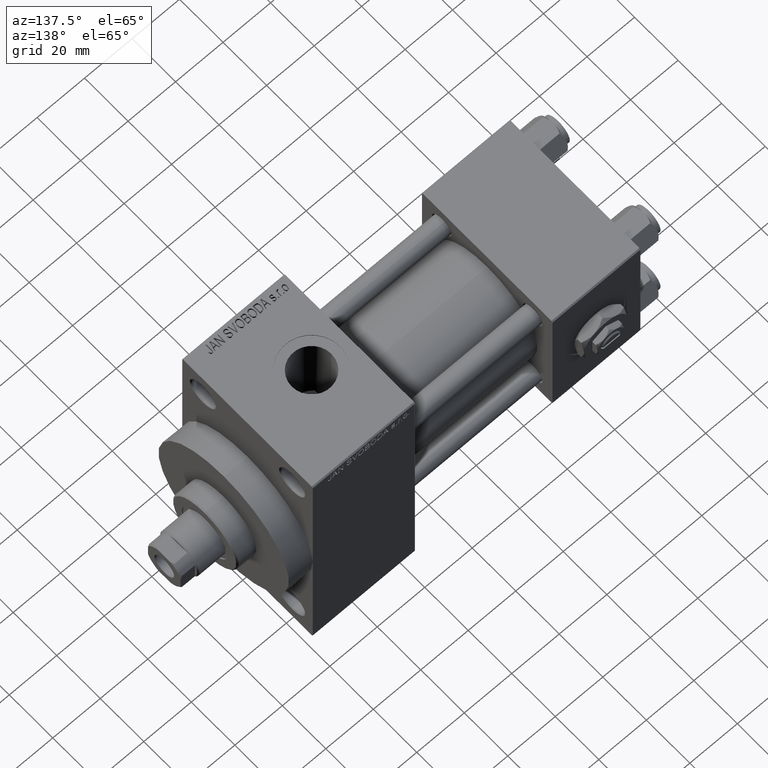
[diagram: clean part render]
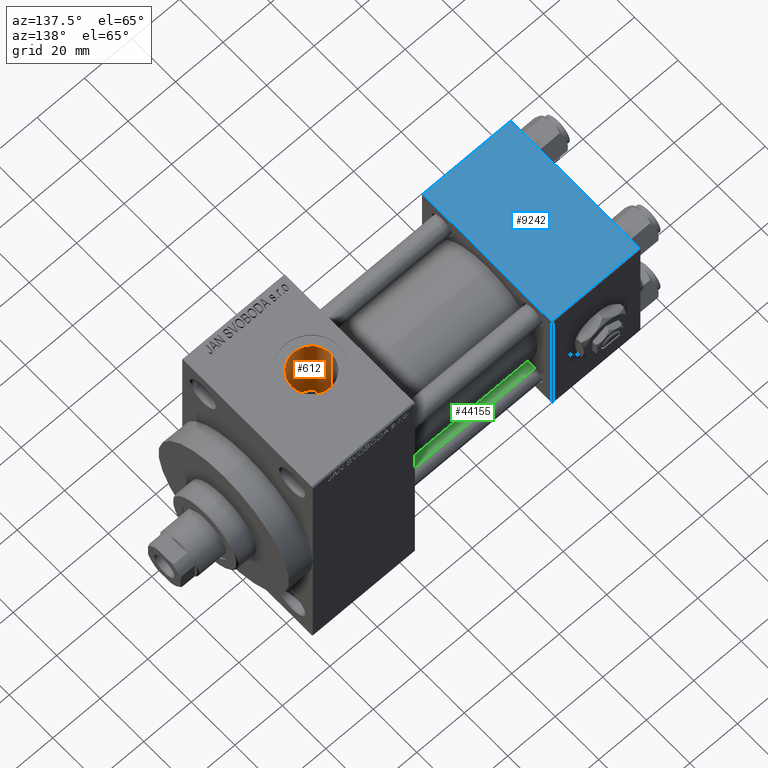
[diagram: same view with three faces highlighted in distinct colors, each labeled with its STEP entity id]
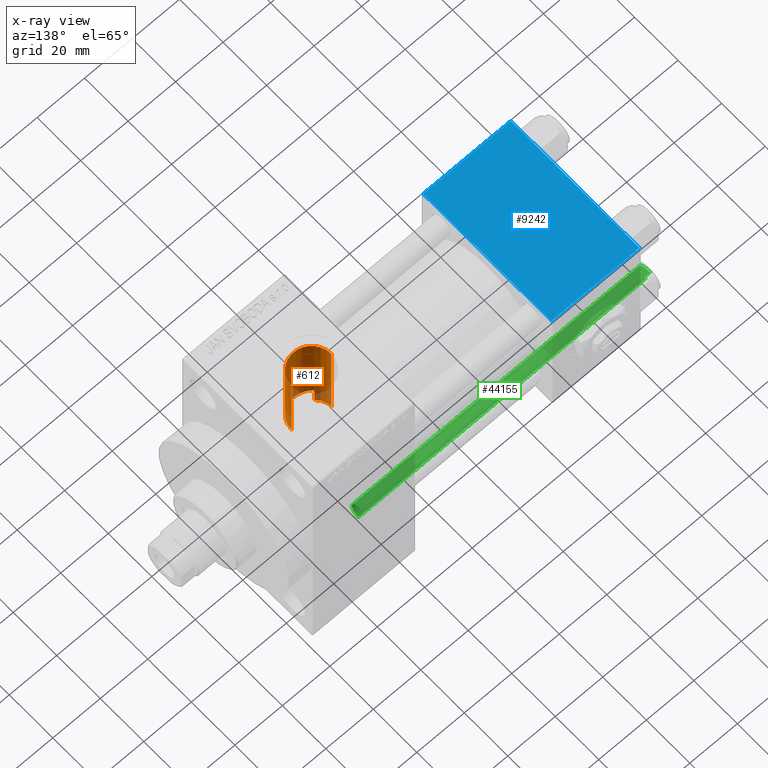
[diagram: x-ray of the same camera — body ghosted, the three highlighted faces saturated]
A machine part, auxiliary view with three faces highlighted in distinct colors.
The next image is the same camera in x-ray (body ghosted, the three faces saturated) — at least one of them is partly hidden behind the body in this view.
Their STEP definitions:

[orange] entity #612 — the highlighted cylindrical surface (edge-blend (fillet) strip) has radius 8.33 mm, axis along (0, 0, -1).
#65 = VECTOR ( 'NONE', #45533, 1000.000000000000000 ) ;
#612 = ADVANCED_FACE ( 'NONE', ( #37263 ), #41476, .F. ) ;
#951 = VERTEX_POINT ( 'NONE', #45856 ) ;
#1090 = CARTESIAN_POINT ( 'NONE',  ( 105.9550632640747949, -6.641689111475751695, 21.49922460944221569 ) ) ;
#1281 = CARTESIAN_POINT ( 'NONE',  ( 102.9120937043486492, -2.009728921522578204, 15.37113873265544761 ) ) ;
#1568 = CARTESIAN_POINT ( 'NONE',  ( 116.7709310325000160, -6.021442665975470732, 21.68155238348414926 ) ) ;
#1838 = CARTESIAN_POINT ( 'NONE',  ( 119.3300000000000125, 7.322959413072145713E-15, 77.29999999999999716 ) ) ;
#2312 = EDGE_CURVE ( 'NONE', #42901, #20030, #19283, .T. ) ;
#3560 = VECTOR ( 'NONE', #43200, 1000.000000000000000 ) ;
#4819 = CARTESIAN_POINT ( 'NONE',  ( 108.5613052431537540, -7.976241308370980221, 21.03905286955202314 ) ) ;
#5735 = DIRECTION ( 'NONE',  ( 0.000000000000000000, 0.000000000000000000, -1.000000000000000000 ) ) ;
#6911 = LINE ( 'NONE', #7897, #65 ) ;
#7897 = CARTESIAN_POINT ( 'NONE',  ( 104.7400000000000233, -5.495570943951159748, 77.29999999999999716 ) ) ;
#9027 = AXIS2_PLACEMENT_3D ( 'NONE', #21068, #10167, #18082 ) ;
#9234 = CARTESIAN_POINT ( 'NONE',  ( 114.7487363894115333, -7.487015359358448308, 21.22021487626641090 ) ) ;
#9475 = CARTESIAN_POINT ( 'NONE',  ( 118.6639140372367791, -3.290714903397350177, 22.26132373405805254 ) ) ;
#10167 = DIRECTION ( 'NONE',  ( -0.000000000000000000, -0.000000000000000000, -1.000000000000000000 ) ) ;
#10302 = VERTEX_POINT ( 'NONE', #29507 ) ;
#10363 = B_SPLINE_CURVE_WITH_KNOTS ( 'NONE', 3,
 ( #19866, #31980, #31021, #43133, #12198, #47072, #34981, #35215, #20580, #1281, #38674, #16375, #13154, #23575 ),
 .UNSPECIFIED., .F., .F.,
 ( 4, 2, 2, 2, 2, 2, 4 ),
 ( 0.02049932184141860583, 0.02125918471438761892, 0.02201904758735663548, 0.02353877333329466165, 0.02429863620626367127, 0.02505849907923268435, 0.02657822482517071053 ),
 .UNSPECIFIED. ) ;
#10758 = DIRECTION ( 'NONE',  ( -1.000000000000000000, 0.000000000000000000, 0.000000000000000000 ) ) ;
#12198 = CARTESIAN_POINT ( 'NONE',  ( 103.9948433974193023, -4.514179031432338007, 14.82972530592077298 ) ) ;
#12248 = CARTESIAN_POINT ( 'NONE',  ( 119.0725935047802437, -2.097577831626820100, 22.40566635581345167 ) ) ;
#12312 = CARTESIAN_POINT ( 'NONE',  ( 119.3300000000000125, 2.755455287773006291E-15, 22.50000000000000355 ) ) ;
#12478 = CARTESIAN_POINT ( 'NONE',  ( 118.2951098973458244, -4.042988316980855146, 22.13706359110742383 ) ) ;
#12967 = CARTESIAN_POINT ( 'NONE',  ( 107.0116854358692962, -7.325101535721546320, 21.27547271216653968 ) ) ;
#12998 = CIRCLE ( 'NONE', #9027, 8.330000000000003624 ) ;
#13154 = CARTESIAN_POINT ( 'NONE',  ( 102.6700000000000017, -0.5084530117862672283, 15.49999999999999822 ) ) ;
#13201 = CARTESIAN_POINT ( 'NONE',  ( 119.3300000000000409, -0.4228661663087284195, 22.50000000000001421 ) ) ;
#14942 = VECTOR ( 'NONE', #5735, 1000.000000000000000 ) ;
#15955 = CARTESIAN_POINT ( 'NONE',  ( 119.3300000000000125, 2.755455287773006291E-15, 22.50000000000000355 ) ) ;
#16375 = CARTESIAN_POINT ( 'NONE',  ( 102.7161642970316251, -1.011996084777072147, 15.47504315940083508 ) ) ;
#16423 = CARTESIAN_POINT ( 'NONE',  ( 116.4597915280917988, -6.305104980880364529, 21.60018777995134798 ) ) ;
#16533 = EDGE_CURVE ( 'NONE', #951, #10302, #35940, .T. ) ;
#17636 = CARTESIAN_POINT ( 'NONE',  ( 119.3300000000000125, 7.322959413072145713E-15, 54.29999999999999716 ) ) ;
#18082 = DIRECTION ( 'NONE',  ( 1.000000000000000000, 0.000000000000000000, 0.000000000000000000 ) ) ;
#18446 = CARTESIAN_POINT ( 'NONE',  ( 104.7400000000000233, -5.495570943951159748, 21.81854028114621258 ) ) ;
#19283 = B_SPLINE_CURVE_WITH_KNOTS ( 'NONE', 3,
 ( #15955, #13201, #31075, #28055, #12248, #24104, #9475, #12478, #46169, #32025, #28285, #1568, #16423, #27334, #9234, #46644, #27821, #38731, #42945, #20378, #39219, #31310, #31787, #4819, #46881, #19915, #12967, #35030, #1090, #43179, #24337, #28783 ),
 .UNSPECIFIED., .F., .F.,
 ( 4, 2, 2, 2, 2, 2, 2, 2, 2, 2, 2, 2, 2, 2, 2, 4 ),
 ( 0.02026158208243475367, 0.02152696880141127117, 0.02279235552038778867, 0.02405774223936430270, 0.02532312895834082020, 0.02658851567731733770, 0.02785390239629385173, 0.03038467583424691448, 0.03291544927219997724, 0.03354814263168821864, 0.03418083599117646698, 0.03544622271015295673, 0.03671160942912944647, 0.03797699614810593621, 0.03924238286708242596, 0.04050776958605891570 ),
 .UNSPECIFIED. ) ;
#19866 = CARTESIAN_POINT ( 'NONE',  ( 104.7400000000000233, -5.495570943951159748, 14.49305695841977126 ) ) ;
#19915 = CARTESIAN_POINT ( 'NONE',  ( 107.3830852825355180, -7.515492575748676352, 21.20842510955139204 ) ) ;
#20030 = VERTEX_POINT ( 'NONE', #18446 ) ;
#20378 = CARTESIAN_POINT ( 'NONE',  ( 110.6388607599010214, -8.324890737869420576, 20.90325837862613412 ) ) ;
#20580 = CARTESIAN_POINT ( 'NONE',  ( 103.0493583877047001, -2.498106590616146150, 15.29935880154671857 ) ) ;
#20964 = ORIENTED_EDGE ( 'NONE', *, *, #2312, .T. ) ;
#21068 = CARTESIAN_POINT ( 'NONE',  ( 111.0000000000000000, 6.302828629382400162E-15, 54.29999999999999716 ) ) ;
#21269 = ORIENTED_EDGE ( 'NONE', *, *, #37911, .T. ) ;
#22639 = DIRECTION ( 'NONE',  ( 0.000000000000000000, 0.000000000000000000, -1.000000000000000000 ) ) ;
#22921 = ORIENTED_EDGE ( 'NONE', *, *, #16533, .F. ) ;
#23575 = CARTESIAN_POINT ( 'NONE',  ( 102.6700000000000017, 1.898202536900960226E-15, 15.50000000000000000 ) ) ;
#24104 = CARTESIAN_POINT ( 'NONE',  ( 118.8195974207912968, -2.901808889280238279, 22.31576175661178141 ) ) ;
#24337 = CARTESIAN_POINT ( 'NONE',  ( 105.0173696454154140, -5.811522461638596759, 21.73895961452385350 ) ) ;
#25144 = EDGE_CURVE ( 'NONE', #29076, #20030, #6911, .T. ) ;
#26179 = CARTESIAN_POINT ( 'NONE',  ( 104.7400000000000233, -5.495570943951159748, 14.49305695841977126 ) ) ;
#27334 = CARTESIAN_POINT ( 'NONE',  ( 115.4717217021022293, -7.077548616542896909, 21.36464718587223643 ) ) ;
#27821 = CARTESIAN_POINT ( 'NONE',  ( 112.3403738839046895, -8.265299052519043954, 20.92696222447262500 ) ) ;
#28055 = CARTESIAN_POINT ( 'NONE',  ( 119.1699291769579077, -1.679278209817679945, 22.44115179447787156 ) ) ;
#28077 = LINE ( 'NONE', #1838, #3560 ) ;
#28172 = VERTEX_POINT ( 'NONE', #17636 ) ;
#28285 = CARTESIAN_POINT ( 'NONE',  ( 117.3413009043436830, -5.417501232309193782, 21.84028767977485330 ) ) ;
#28491 = CARTESIAN_POINT ( 'NONE',  ( 102.6700000000000017, 6.302828629382400162E-15, 77.29999999999999716 ) ) ;
#28783 = CARTESIAN_POINT ( 'NONE',  ( 104.7400000000000233, -5.495570943951159748, 21.81854028114621258 ) ) ;
#29076 = VERTEX_POINT ( 'NONE', #26179 ) ;
#29507 = CARTESIAN_POINT ( 'NONE',  ( 102.6700000000000017, 1.898202536900960226E-15, 15.50000000000000000 ) ) ;
#29556 = ORIENTED_EDGE ( 'NONE', *, *, #29625, .T. ) ;
#29625 = EDGE_CURVE ( 'NONE', #29076, #10302, #10363, .T. ) ;
#31021 = CARTESIAN_POINT ( 'NONE',  ( 104.4250998660804157, -5.120614576075413815, 14.63125231332695009 ) ) ;
#31075 = CARTESIAN_POINT ( 'NONE',  ( 119.2979863424998257, -0.8432915997222955040, 22.48808859033163188 ) ) ;
#31310 = CARTESIAN_POINT ( 'NONE',  ( 109.7966742200955963, -8.253438808842114227, 20.93161653585327286 ) ) ;
#31787 = CARTESIAN_POINT ( 'NONE',  ( 109.3814412075936531, -8.182171164303330357, 20.95982457214782357 ) ) ;
#31980 = CARTESIAN_POINT ( 'NONE',  ( 104.5787930821608853, -5.311940286469821082, 14.56268721714078396 ) ) ;
#32025 = CARTESIAN_POINT ( 'NONE',  ( 117.6031555897930758, -5.095277354536523973, 21.91828998158686304 ) ) ;
#33831 = ORIENTED_EDGE ( 'NONE', *, *, #36961, .F. ) ;
#34287 = CARTESIAN_POINT ( 'NONE',  ( 111.0000000000000000, 6.302828629382400162E-15, 77.29999999999999716 ) ) ;
#34981 = CARTESIAN_POINT ( 'NONE',  ( 103.3948893894385748, -3.435066750549618853, 15.12202026186481341 ) ) ;
#35030 = CARTESIAN_POINT ( 'NONE',  ( 106.2981393575764457, -6.888851288155064978, 21.42070446004186479 ) ) ;
#35215 = CARTESIAN_POINT ( 'NONE',  ( 103.1283513953167699, -2.736452263294506526, 15.25837881643903948 ) ) ;
#35324 = ORIENTED_EDGE ( 'NONE', *, *, #25144, .F. ) ;
#35940 = LINE ( 'NONE', #28491, #14942 ) ;
#36961 = EDGE_CURVE ( 'NONE', #28172, #951, #12998, .T. ) ;
#37263 = FACE_OUTER_BOUND ( 'NONE', #45304, .T. ) ;
#37911 = EDGE_CURVE ( 'NONE', #28172, #42901, #28077, .T. ) ;
#38674 = CARTESIAN_POINT ( 'NONE',  ( 102.8541189623221044, -1.760060972621111608, 15.40178429883650502 ) ) ;
#38731 = CARTESIAN_POINT ( 'NONE',  ( 111.2794540716097629, -8.328024065339553417, 20.90201419577500985 ) ) ;
#39219 = CARTESIAN_POINT ( 'NONE',  ( 110.4273342078095936, -8.312974207010734418, 20.90801079915067362 ) ) ;
#41476 = CYLINDRICAL_SURFACE ( 'NONE', #44039, 8.330000000000003624 ) ;
#42901 = VERTEX_POINT ( 'NONE', #12312 ) ;
#42945 = CARTESIAN_POINT ( 'NONE',  ( 111.0645977083230065, -8.332469890991669459, 20.90023832775082724 ) ) ;
#43133 = CARTESIAN_POINT ( 'NONE',  ( 104.1330257393911722, -4.721723193058591228, 14.76480843021959899 ) ) ;
#43179 = CARTESIAN_POINT ( 'NONE',  ( 105.3158746668531620, -6.103616970294096333, 21.65812902678066720 ) ) ;
#43200 = DIRECTION ( 'NONE',  ( 0.000000000000000000, 0.000000000000000000, -1.000000000000000000 ) ) ;
#44039 = AXIS2_PLACEMENT_3D ( 'NONE', #34287, #22639, #10758 ) ;
#45304 = EDGE_LOOP ( 'NONE', ( #33831, #21269, #20964, #35324, #29556, #22921 ) ) ;
#45533 = DIRECTION ( 'NONE',  ( -0.000000000000000000, -0.000000000000000000, 1.000000000000000000 ) ) ;
#45856 = CARTESIAN_POINT ( 'NONE',  ( 102.6700000000000017, 6.302828629382400162E-15, 54.29999999999999716 ) ) ;
#46169 = CARTESIAN_POINT ( 'NONE',  ( 118.0799258618782517, -4.408873422199381054, 22.06660649451128364 ) ) ;
#46644 = CARTESIAN_POINT ( 'NONE',  ( 113.1626272159215887, -8.088971939222112439, 20.99812971082578272 ) ) ;
#46881 = CARTESIAN_POINT ( 'NONE',  ( 108.1560306839754588, -7.840697625789145420, 21.09036237300174932 ) ) ;
#47072 = CARTESIAN_POINT ( 'NONE',  ( 103.6117315744683509, -3.879035329860508252, 15.01323898488448272 ) ) ;

[blue] entity #9242 — the highlighted planar face has unit normal (0, 0, -1).
#421 = CARTESIAN_POINT ( 'NONE',  ( 37.00000000000000000, -29.49999999999998579, 29.99999999999999289 ) ) ;
#547 = CARTESIAN_POINT ( 'NONE',  ( 37.00000000000000000, -29.50000000000000000, 29.99999999999999289 ) ) ;
#1680 = LINE ( 'NONE', #16772, #31610 ) ;
#2492 = CARTESIAN_POINT ( 'NONE',  ( 37.00000000000000000, 29.49999999999999289, 30.00000000000000000 ) ) ;
#2797 = DIRECTION ( 'NONE',  ( 0.000000000000000000, 1.156482317317871725E-16, -1.000000000000000000 ) ) ;
#5486 = DIRECTION ( 'NONE',  ( -1.000000000000000000, 0.000000000000000000, 0.000000000000000000 ) ) ;
#6745 = ORIENTED_EDGE ( 'NONE', *, *, #16493, .T. ) ;
#9242 = ADVANCED_FACE ( 'NONE', ( #17151 ), #13450, .F. ) ;
#10020 = VERTEX_POINT ( 'NONE', #41212 ) ;
#12362 = VERTEX_POINT ( 'NONE', #2492 ) ;
#12436 = CARTESIAN_POINT ( 'NONE',  ( 0.000000000000000000, 29.49999999999999289, 30.00000000000000000 ) ) ;
#13450 = PLANE ( 'NONE',  #26817 ) ;
#15649 = DIRECTION ( 'NONE',  ( 1.000000000000000000, 0.000000000000000000, 0.000000000000000000 ) ) ;
#16493 = EDGE_CURVE ( 'NONE', #10020, #48468, #30275, .T. ) ;
#16653 = EDGE_CURVE ( 'NONE', #12362, #35043, #46359, .T. ) ;
#16772 = CARTESIAN_POINT ( 'NONE',  ( 0.000000000000000000, 29.99999999999999289, 30.00000000000000000 ) ) ;
#17151 = FACE_OUTER_BOUND ( 'NONE', #32473, .T. ) ;
#18715 = EDGE_CURVE ( 'NONE', #35043, #10020, #1680, .T. ) ;
#23945 = CARTESIAN_POINT ( 'NONE',  ( 37.00000000000000000, 29.99999999999999289, 30.00000000000000000 ) ) ;
#25569 = DIRECTION ( 'NONE',  ( 0.000000000000000000, 1.000000000000000000, 1.156482317317871725E-16 ) ) ;
#26013 = VECTOR ( 'NONE', #5486, 1000.000000000000000 ) ;
#26817 = AXIS2_PLACEMENT_3D ( 'NONE', #32263, #2797, #25569 ) ;
#30275 = LINE ( 'NONE', #547, #37077 ) ;
#31610 = VECTOR ( 'NONE', #32620, 1000.000000000000000 ) ;
#32263 = CARTESIAN_POINT ( 'NONE',  ( 37.00000000000000000, 29.99999999999999289, 30.00000000000000000 ) ) ;
#32473 = EDGE_LOOP ( 'NONE', ( #34148, #6745, #48780, #40062 ) ) ;
#32620 = DIRECTION ( 'NONE',  ( 0.000000000000000000, -1.000000000000000000, -1.156482317317871725E-16 ) ) ;
#32971 = CARTESIAN_POINT ( 'NONE',  ( 0.000000000000000000, 29.49999999999999289, 30.00000000000000000 ) ) ;
#34148 = ORIENTED_EDGE ( 'NONE', *, *, #18715, .T. ) ;
#34417 = EDGE_CURVE ( 'NONE', #12362, #48468, #42788, .T. ) ;
#35043 = VERTEX_POINT ( 'NONE', #32971 ) ;
#37077 = VECTOR ( 'NONE', #15649, 1000.000000000000000 ) ;
#39062 = DIRECTION ( 'NONE',  ( 0.000000000000000000, -1.000000000000000000, -1.156482317317871725E-16 ) ) ;
#40062 = ORIENTED_EDGE ( 'NONE', *, *, #16653, .T. ) ;
#41212 = CARTESIAN_POINT ( 'NONE',  ( 0.000000000000000000, -29.49999999999998579, 29.99999999999999289 ) ) ;
#42788 = LINE ( 'NONE', #23945, #48520 ) ;
#46359 = LINE ( 'NONE', #12436, #26013 ) ;
#48468 = VERTEX_POINT ( 'NONE', #421 ) ;
#48520 = VECTOR ( 'NONE', #39062, 1000.000000000000000 ) ;
#48780 = ORIENTED_EDGE ( 'NONE', *, *, #34417, .F. ) ;

[green] entity #44155 — the highlighted cylindrical surface (edge-blend (fillet) strip) has radius 4 mm, axis along (1, -0, 0).
#906 = VERTEX_POINT ( 'NONE', #41905 ) ;
#1620 = EDGE_LOOP ( 'NONE', ( #27015, #5068, #38249, #32275 ) ) ;
#2108 = VERTEX_POINT ( 'NONE', #13747 ) ;
#3320 = CYLINDRICAL_SURFACE ( 'NONE', #41063, 4.000000000000000000 ) ;
#4301 = FACE_OUTER_BOUND ( 'NONE', #1620, .T. ) ;
#4362 = CARTESIAN_POINT ( 'NONE',  ( 0.000000000000000000, 0.000000000000000000, 0.5000000000000559552 ) ) ;
#5068 = ORIENTED_EDGE ( 'NONE', *, *, #44042, .T. ) ;
#6876 = EDGE_CURVE ( 'NONE', #2108, #28092, #44048, .T. ) ;
#6899 = CARTESIAN_POINT ( 'NONE',  ( 4.000000000000000000, 4.898587196589411843E-16, 122.0000000000000000 ) ) ;
#13391 = AXIS2_PLACEMENT_3D ( 'NONE', #4362, #45703, #27608 ) ;
#13747 = CARTESIAN_POINT ( 'NONE',  ( 4.000000000000000000, 4.898587196589411843E-16, 121.5000000000000426 ) ) ;
#14931 = DIRECTION ( 'NONE',  ( -0.000000000000000000, -0.000000000000000000, -1.000000000000000000 ) ) ;
#20397 = DIRECTION ( 'NONE',  ( 1.000000000000000000, 0.000000000000000000, 0.000000000000000000 ) ) ;
#20439 = CARTESIAN_POINT ( 'NONE',  ( -4.000000000000000000, 0.000000000000000000, 0.5000000000000559552 ) ) ;
#20901 = EDGE_CURVE ( 'NONE', #26476, #28092, #33155, .T. ) ;
#22104 = CIRCLE ( 'NONE', #48965, 4.000000000000000000 ) ;
#22859 = CARTESIAN_POINT ( 'NONE',  ( 0.000000000000000000, 0.000000000000000000, 122.0000000000000000 ) ) ;
#23410 = DIRECTION ( 'NONE',  ( 0.000000000000000000, 0.000000000000000000, -1.000000000000000000 ) ) ;
#23885 = CARTESIAN_POINT ( 'NONE',  ( 0.000000000000000000, 0.000000000000000000, 121.5000000000000426 ) ) ;
#24683 = VECTOR ( 'NONE', #25433, 1000.000000000000000 ) ;
#25433 = DIRECTION ( 'NONE',  ( -0.000000000000000000, -0.000000000000000000, -1.000000000000000000 ) ) ;
#26476 = VERTEX_POINT ( 'NONE', #20439 ) ;
#26576 = DIRECTION ( 'NONE',  ( -1.000000000000000000, 0.000000000000000000, 0.000000000000000000 ) ) ;
#27015 = ORIENTED_EDGE ( 'NONE', *, *, #6876, .F. ) ;
#27608 = DIRECTION ( 'NONE',  ( 1.000000000000000000, 0.000000000000000000, 0.000000000000000000 ) ) ;
#28092 = VERTEX_POINT ( 'NONE', #37993 ) ;
#29031 = EDGE_CURVE ( 'NONE', #906, #26476, #41540, .T. ) ;
#31609 = VECTOR ( 'NONE', #32916, 1000.000000000000000 ) ;
#32275 = ORIENTED_EDGE ( 'NONE', *, *, #20901, .T. ) ;
#32916 = DIRECTION ( 'NONE',  ( -0.000000000000000000, -0.000000000000000000, -1.000000000000000000 ) ) ;
#33155 = CIRCLE ( 'NONE', #13391, 4.000000000000000000 ) ;
#37564 = CARTESIAN_POINT ( 'NONE',  ( -4.000000000000000000, 0.000000000000000000, 122.0000000000000000 ) ) ;
#37993 = CARTESIAN_POINT ( 'NONE',  ( 4.000000000000000000, 4.898587196589411843E-16, 0.5000000000000559552 ) ) ;
#38249 = ORIENTED_EDGE ( 'NONE', *, *, #29031, .T. ) ;
#41063 = AXIS2_PLACEMENT_3D ( 'NONE', #22859, #14931, #26576 ) ;
#41540 = LINE ( 'NONE', #37564, #24683 ) ;
#41905 = CARTESIAN_POINT ( 'NONE',  ( -4.000000000000000000, 0.000000000000000000, 121.5000000000000426 ) ) ;
#44042 = EDGE_CURVE ( 'NONE', #2108, #906, #22104, .T. ) ;
#44048 = LINE ( 'NONE', #6899, #31609 ) ;
#44155 = ADVANCED_FACE ( 'NONE', ( #4301 ), #3320, .T. ) ;
#45703 = DIRECTION ( 'NONE',  ( -0.000000000000000000, -0.000000000000000000, 1.000000000000000000 ) ) ;
#48965 = AXIS2_PLACEMENT_3D ( 'NONE', #23885, #23410, #20397 ) ;